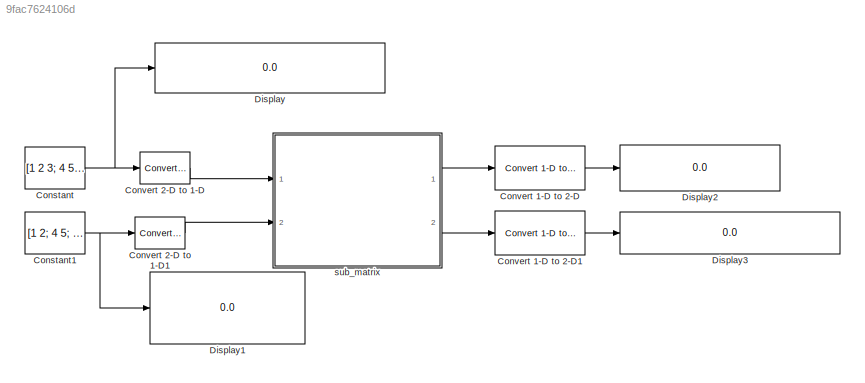
MODEL slx_9fac7624106d
KIND model
CONFIG AbsTol = auto
CONFIG FixedStep = auto
CONFIG MaxStep = auto
CONFIG MinStep = auto
CONFIG RelTol = 1e-3
CONFIG SampleTimeConstraint = Unconstrained
CONFIG Solver = ode45
CONFIG SolverMode = Auto
CONFIG SolverName = ode45
CONFIG StartTime = 0.0
CONFIG StopTime = 10.0
BLOCK [Constant] Constant
  OutDataTypeStr = int16
  SampleTime = 1
  Value = [1 2 3; 4 5 6]
BLOCK [Constant] Constant1
  OutDataTypeStr = int16
  SampleTime = 1
  Value = [1 2; 4 5;  6 7]
BLOCK [Reference] Convert 1-D to 2-D  REF=dspsigattribs/Convert 1-D to 2-D
  Ports = [1, 1]
  SourceBlock = dspsigattribs/Convert 1-D to 2-D
  SourceType = Convert 1-D to 2-D
BLOCK [Reference] Convert 1-D to 2-D1  REF=dspsigattribs/Convert 1-D to 2-D
  Ports = [1, 1]
  SourceBlock = dspsigattribs/Convert 1-D to 2-D
  SourceType = Convert 1-D to 2-D
BLOCK [Reference] Convert 2-D to 1-D  REF=dspsigattribs/Convert 2-D to 1-D
  Ports = [1, 1]
  SourceBlock = dspsigattribs/Convert 2-D to 1-D
  SourceType = Convert 2-D to 1-D
BLOCK [Reference] Convert 2-D to 1-D1  REF=dspsigattribs/Convert 2-D to 1-D
  Ports = [1, 1]
  SourceBlock = dspsigattribs/Convert 2-D to 1-D
  SourceType = Convert 2-D to 1-D
BLOCK [Display] Display
  Decimation = 1
  Ports = [1]
BLOCK [Display] Display1
  Decimation = 1
  Ports = [1]
BLOCK [Display] Display2
  Decimation = 1
  Ports = [1]
BLOCK [Display] Display3
  Decimation = 1
  Ports = [1]
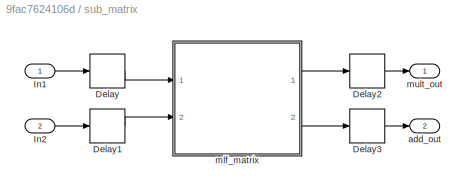
BLOCK [SubSystem] sub_matrix
  Ports = [2, 2]
  RequestExecContextInheritance = off
  Variant = off
BLOCK [Delay] sub_matrix/Delay
  DelayLength = 1
  InputPortMap = u0
  Ports = [1, 1]
BLOCK [Delay] sub_matrix/Delay1
  DelayLength = 1
  InputPortMap = u0
  Ports = [1, 1]
BLOCK [Delay] sub_matrix/Delay2
  DelayLength = 1
  InputPortMap = u0
  Ports = [1, 1]
BLOCK [Delay] sub_matrix/Delay3
  DelayLength = 1
  InputPortMap = u0
  Ports = [1, 1]
BLOCK [Inport] sub_matrix/In1
  IconDisplay = Port number
BLOCK [Inport] sub_matrix/In2
  IconDisplay = Port number
  Port = 2
BLOCK [Outport] sub_matrix/add_out
  IconDisplay = Port number
  Port = 2
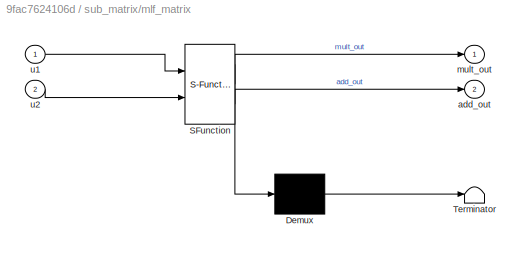
BLOCK [SubSystem] sub_matrix/mlf_matrix
  ErrorFcn = Stateflow.Translate.translate
  PermitHierarchicalResolution = ExplicitOnly
  Ports = [2, 2]
  RequestExecContextInheritance = off
  SFBlockType = MATLAB Function
  TreatAsAtomicUnit = on
  Variant = off
BLOCK [Demux] sub_matrix/mlf_matrix/ Demux 
  Outputs = 1
  Ports = [1, 1]
BLOCK [S-Function] sub_matrix/mlf_matrix/ SFunction 
  EnableBusSupport = on
  FunctionName = sf_sfun
  PortCounts = [2 3]
  Ports = [2, 3]
  SFunctionDeploymentMode = off
  Tag = Stateflow S-Function mlf_matrix_mac 2
BLOCK [Terminator] sub_matrix/mlf_matrix/ Terminator 
BLOCK [Outport] sub_matrix/mlf_matrix/add_out
  IconDisplay = Port number
  Port = 2
BLOCK [Outport] sub_matrix/mlf_matrix/mult_out
  IconDisplay = Port number
BLOCK [Inport] sub_matrix/mlf_matrix/u1
  IconDisplay = Port number
BLOCK [Inport] sub_matrix/mlf_matrix/u2
  IconDisplay = Port number
  Port = 2
BLOCK [Outport] sub_matrix/mult_out
  IconDisplay = Port number
NET Constant1:1 -> Convert 2-D to 1-D1:1, Display1:1
NET Constant:1 -> Convert 2-D to 1-D:1, Display:1
LINE Convert 1-D to 2-D1:1 -> Display3:1
LINE Convert 1-D to 2-D:1 -> Display2:1
LINE Convert 2-D to 1-D1:1 -> sub_matrix:2
LINE Convert 2-D to 1-D:1 -> sub_matrix:1
LINE sub_matrix/Delay1:1 -> sub_matrix/mlf_matrix:2
LINE sub_matrix/Delay2:1 -> sub_matrix/mult_out:1
LINE sub_matrix/Delay3:1 -> sub_matrix/add_out:1
LINE sub_matrix/Delay:1 -> sub_matrix/mlf_matrix:1
LINE sub_matrix/In1:1 -> sub_matrix/Delay:1
LINE sub_matrix/In2:1 -> sub_matrix/Delay1:1
LINE sub_matrix/mlf_matrix:1 -> sub_matrix/Delay2:1
LINE sub_matrix/mlf_matrix:2 -> sub_matrix/Delay3:1
LINE sub_matrix:1 -> Convert 1-D to 2-D:1
LINE sub_matrix:2 -> Convert 1-D to 2-D1:1
note: NET lines group one-source signal fan-out (src -> all destinations, sorted); 1:1 wires keep LINE
CHART sub_matrix/mlf_matrix states=1 transitions=1
  STATE_LABEL 'eML_blk_kernel()'
  STATE_LABEL "SCRIPT:\nfunction [mult_out,add_out] = fcn(u1, u2)\n%#eml\ntmp1 = reshape(u1,2,3);\t% 1D=>2D\ntmp2 = reshape(u2,3,2);\t% 1D=>2D\n\ntmp3 = int16(fi(tmp1,1,16,0)*fi(tmp2,1,16,0));\n\nmult_out = tmp3(:);\n\ntmp4 = tmp1+tmp2';\n\nadd_out = tmp4(:);\n"
